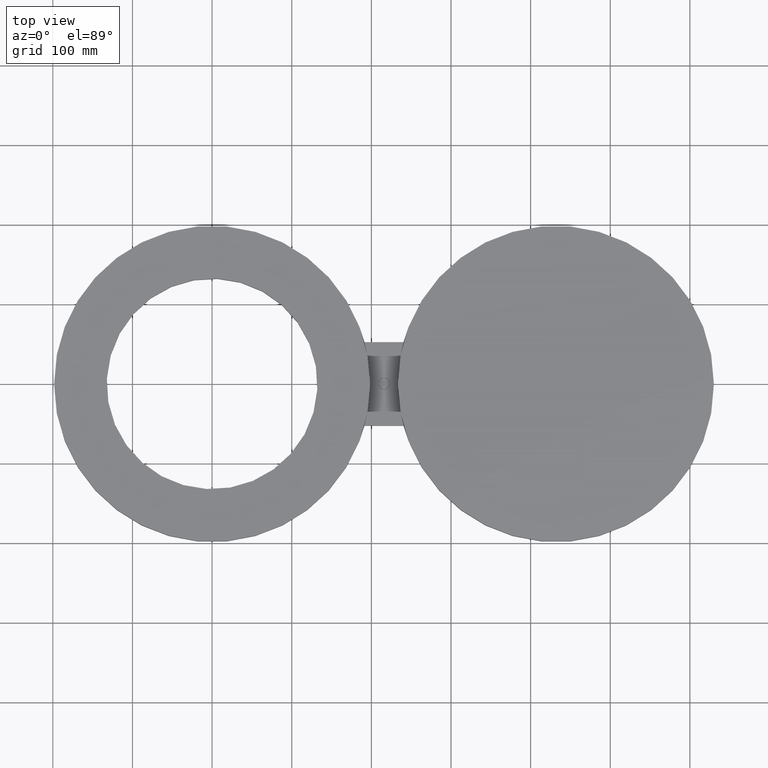
[diagram: clean part render]
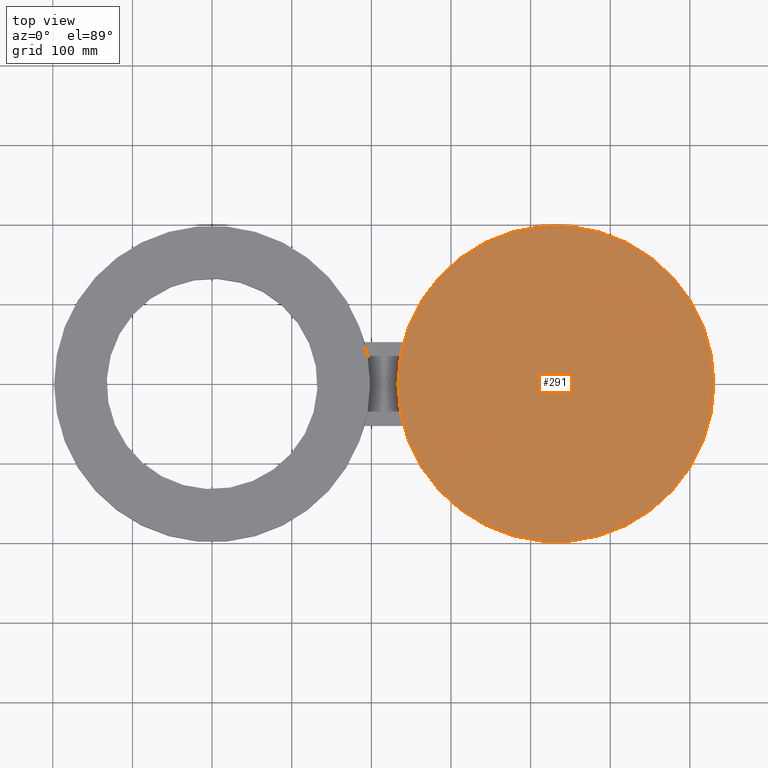
[diagram: same view with one face highlighted and labeled with its STEP entity id]
A machine part, top view. The second image highlights one B-rep face of the part: STEP entity #291.
In plain terms, the highlighted planar face has unit normal (0, 0, 1).
Its self-contained STEP definition (entity closure, byte-faithful):
#78=AXIS2_PLACEMENT_3D('Plane Axis2P3D',#75,#76,#77) ;
#275=AXIS2_PLACEMENT_3D('Circle Axis2P3D',#273,#274,$) ;
#284=AXIS2_PLACEMENT_3D('Circle Axis2P3D',#282,#283,$) ;
#75=CARTESIAN_POINT('Axis2P3D Location',(0.,0.,0.690000000003)) ;
#273=CARTESIAN_POINT('Axis2P3D Location',(17.0000000001,2.08189955856E-015,0.690000000003)) ;
#277=CARTESIAN_POINT('Vertex',(9.19000000004,3.0383487087E-015,0.690000000003)) ;
#279=CARTESIAN_POINT('Vertex',(24.8100000001,1.69001258283E-016,0.690000000003)) ;
#282=CARTESIAN_POINT('Axis2P3D Location',(17.0000000001,2.08189955856E-015,0.690000000003)) ;
#76=DIRECTION('Axis2P3D Direction',(0.,0.,0.0393700787402)) ;
#77=DIRECTION('Axis2P3D XDirection',(0.0393700787402,0.,0.)) ;
#274=DIRECTION('Axis2P3D Direction',(0.,0.,0.0393700787402)) ;
#283=DIRECTION('Axis2P3D Direction',(0.,0.,0.0393700787402)) ;
#288=ORIENTED_EDGE('',*,*,#281,.T.) ;
#289=ORIENTED_EDGE('',*,*,#286,.T.) ;
#291=ADVANCED_FACE('PartBody',(#290),#79,.T.) ;
#276=CIRCLE('generated circle',#275,7.81000000003) ;
#285=CIRCLE('generated circle',#284,7.81000000003) ;
#281=EDGE_CURVE('',#278,#280,#276,.T.) ;
#286=EDGE_CURVE('',#280,#278,#285,.T.) ;
#287=EDGE_LOOP('',(#288,#289)) ;
#290=FACE_OUTER_BOUND('',#287,.T.) ;
#79=PLANE('',#78) ;
#278=VERTEX_POINT('',#277) ;
#280=VERTEX_POINT('',#279) ;